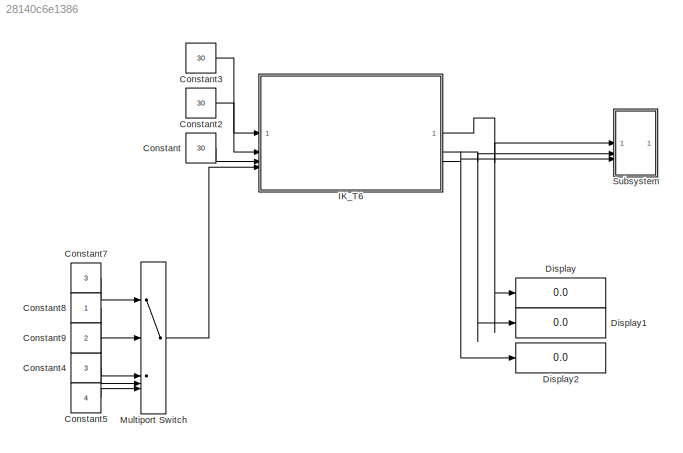
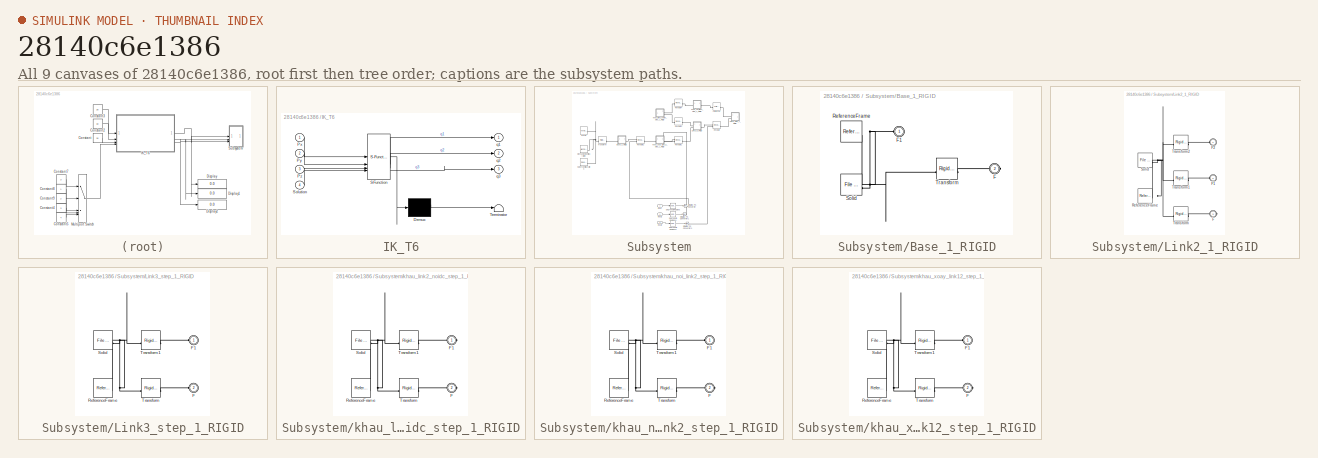
[diagram: thumbnail index - all 9 canvases of the model, root first then tree order]
MODEL slx_28140c6e1386
KIND model
CONFIG AbsTol = auto
CONFIG EnableMultiTasking = off
CONFIG FixedStep = auto
CONFIG MaxStep = auto
CONFIG MinStep = auto
CONFIG RelTol = 1e-3
CONFIG SampleTimeConstraint = Unconstrained
CONFIG SolverName = VariableStepAuto
CONFIG StartTime = 0.0
CONFIG StopTime = 10.0
WORKSPACE source: external: MATLAB File  (data not in archive)
BLOCK [Constant] Constant
  Value = 30
BLOCK [Constant] Constant2
  Value = 30
BLOCK [Constant] Constant3
  Value = 30
BLOCK [Constant] Constant4
  Value = 3
BLOCK [Constant] Constant5
  Value = 4
BLOCK [Constant] Constant7
  Value = 3
BLOCK [Constant] Constant8
BLOCK [Constant] Constant9
  Value = 2
BLOCK [Display] Display
  Decimation = 1
BLOCK [Display] Display1
  Decimation = 1
BLOCK [Display] Display2
  Decimation = 1
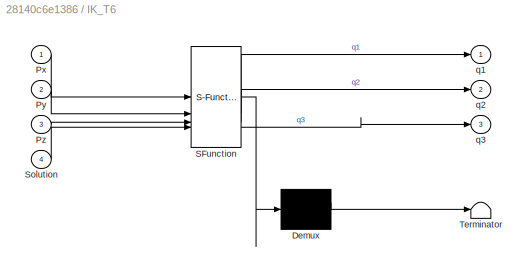
BLOCK [SubSystem] IK_T6
  ErrorFcn = Stateflow.Translate.translate
  LibrarySourceBlock = simulink/User-Defined\nFunctions/MATLAB Function
  PermitHierarchicalResolution = ExplicitOnly
  SFBlockType = MATLAB Function
  TreatAsAtomicUnit = on
BLOCK [Demux] IK_T6/ Demux 
  Outputs = 1
BLOCK [S-Function] IK_T6/ SFunction 
  EnableBusSupport = on
  FunctionName = sf_sfun
  PortCounts = [4 4]
  SFcnIsStateOwnerBlock = off
  SFunctionDeploymentMode = off
  Tag = Stateflow S-Function 3
BLOCK [Terminator] IK_T6/ Terminator 
BLOCK [Inport] IK_T6/Px
BLOCK [Inport] IK_T6/Py
  Port = 2
BLOCK [Inport] IK_T6/Pz
  Port = 3
BLOCK [Inport] IK_T6/Solution
  Port = 4
BLOCK [Outport] IK_T6/q1
BLOCK [Outport] IK_T6/q2
  Port = 2
BLOCK [Outport] IK_T6/q3
  Port = 3
BLOCK [MultiPortSwitch] Multiport Switch
  InputSameDT = off
  Inputs = 4
  SaturateOnIntegerOverflow = off
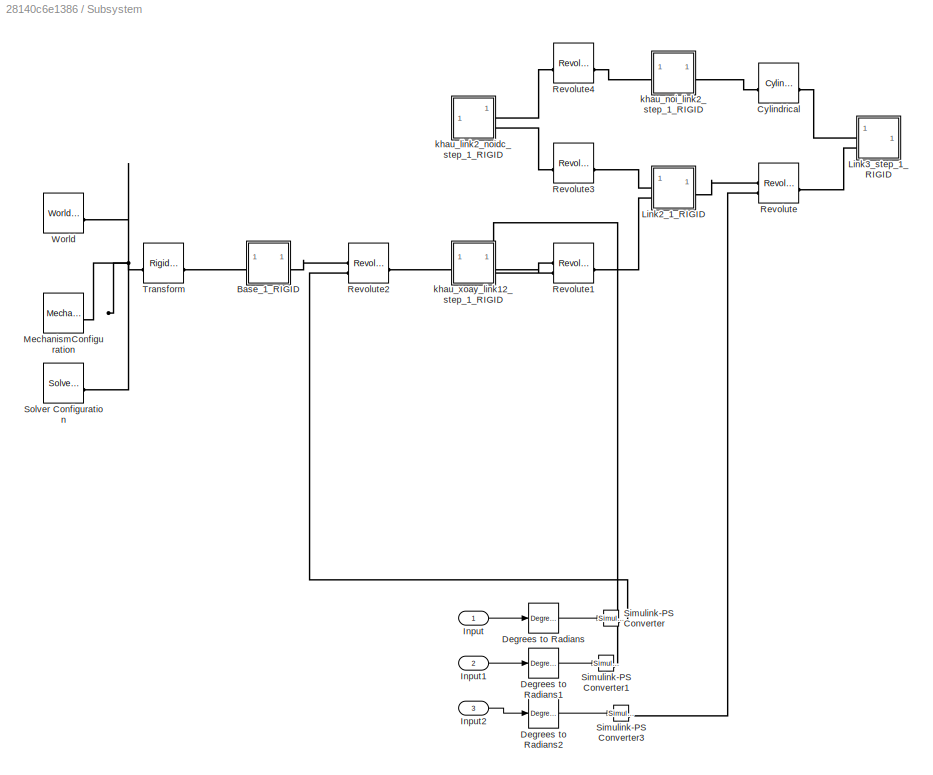
BLOCK [SubSystem] Subsystem
BLOCK [SubSystem] Subsystem/Base_1_RIGID
BLOCK [PMIOPort] Subsystem/Base_1_RIGID/F
  Port = 2
  Side = Right
BLOCK [PMIOPort] Subsystem/Base_1_RIGID/F1
  Side = Left
BLOCK [Reference] Subsystem/Base_1_RIGID/ReferenceFrame  REF=sm_lib/Frames and
Transforms/Reference
Frame
  SourceBlock = sm_lib/Frames and\nTransforms/Reference\nFrame
  SourceType = Reference\nFrame
BLOCK [Reference] Subsystem/Base_1_RIGID/Solid  REF=sm_lib/Body Elements/File Solid
  SourceBlock = sm_lib/Body Elements/File Solid
  SourceType = File Solid
BLOCK [Reference] Subsystem/Base_1_RIGID/Transform  REF=sm_lib/Frames and
Transforms/Rigid
Transform
  SourceBlock = sm_lib/Frames and\nTransforms/Rigid\nTransform
  SourceType = Rigid\nTransform
BLOCK [Reference] Subsystem/Cylindrical  REF=sm_lib/Joints/Cylindrical
Joint
  SourceBlock = sm_lib/Joints/Cylindrical\nJoint
  SourceType = Cylindrical\nJoint
BLOCK [Reference] Subsystem/Degrees to Radians  REF=simulink_extras/Transformations/Degrees to
Radians
  SourceBlock = simulink_extras/Transformations/Degrees to\nRadians
  SourceType = DegreesToRadians
BLOCK [Reference] Subsystem/Degrees to Radians1  REF=simulink_extras/Transformations/Degrees to
Radians
  SourceBlock = simulink_extras/Transformations/Degrees to\nRadians
  SourceType = DegreesToRadians
BLOCK [Reference] Subsystem/Degrees to Radians2  REF=simulink_extras/Transformations/Degrees to
Radians
  SourceBlock = simulink_extras/Transformations/Degrees to\nRadians
  SourceType = DegreesToRadians
BLOCK [Inport] Subsystem/Input
BLOCK [Inport] Subsystem/Input1
  Port = 2
BLOCK [Inport] Subsystem/Input2
  Port = 3
BLOCK [SubSystem] Subsystem/Link2_1_RIGID
BLOCK [PMIOPort] Subsystem/Link2_1_RIGID/F
  Port = 3
  Side = Right
BLOCK [PMIOPort] Subsystem/Link2_1_RIGID/F1
  Port = 2
  Side = Left
BLOCK [PMIOPort] Subsystem/Link2_1_RIGID/F2
  Side = Left
BLOCK [Reference] Subsystem/Link2_1_RIGID/ReferenceFrame  REF=sm_lib/Frames and
Transforms/Reference
Frame
  SourceBlock = sm_lib/Frames and\nTransforms/Reference\nFrame
  SourceType = Reference\nFrame
BLOCK [Reference] Subsystem/Link2_1_RIGID/Solid  REF=sm_lib/Body Elements/File Solid
  SourceBlock = sm_lib/Body Elements/File Solid
  SourceType = File Solid
BLOCK [Reference] Subsystem/Link2_1_RIGID/Transform  REF=sm_lib/Frames and
Transforms/Rigid
Transform
  SourceBlock = sm_lib/Frames and\nTransforms/Rigid\nTransform
  SourceType = Rigid\nTransform
BLOCK [Reference] Subsystem/Link2_1_RIGID/Transform1  REF=sm_lib/Frames and
Transforms/Rigid
Transform
  SourceBlock = sm_lib/Frames and\nTransforms/Rigid\nTransform
  SourceType = Rigid\nTransform
BLOCK [Reference] Subsystem/Link2_1_RIGID/Transform2  REF=sm_lib/Frames and
Transforms/Rigid
Transform
  SourceBlock = sm_lib/Frames and\nTransforms/Rigid\nTransform
  SourceType = Rigid\nTransform
BLOCK [SubSystem] Subsystem/Link3_step_1_RIGID
BLOCK [PMIOPort] Subsystem/Link3_step_1_RIGID/F
  Port = 2
  Side = Left
BLOCK [PMIOPort] Subsystem/Link3_step_1_RIGID/F1
  Side = Left
BLOCK [Reference] Subsystem/Link3_step_1_RIGID/ReferenceFrame  REF=sm_lib/Frames and
Transforms/Reference
Frame
  SourceBlock = sm_lib/Frames and\nTransforms/Reference\nFrame
  SourceType = Reference\nFrame
BLOCK [Reference] Subsystem/Link3_step_1_RIGID/Solid  REF=sm_lib/Body Elements/File Solid
  SourceBlock = sm_lib/Body Elements/File Solid
  SourceType = File Solid
BLOCK [Reference] Subsystem/Link3_step_1_RIGID/Transform  REF=sm_lib/Frames and
Transforms/Rigid
Transform
  SourceBlock = sm_lib/Frames and\nTransforms/Rigid\nTransform
  SourceType = Rigid\nTransform
BLOCK [Reference] Subsystem/Link3_step_1_RIGID/Transform1  REF=sm_lib/Frames and
Transforms/Rigid
Transform
  SourceBlock = sm_lib/Frames and\nTransforms/Rigid\nTransform
  SourceType = Rigid\nTransform
BLOCK [Reference] Subsystem/MechanismConfiguration  REF=sm_lib/Utilities/Mechanism
Configuration
  SourceBlock = sm_lib/Utilities/Mechanism\nConfiguration
  SourceType = Mechanism\nConfiguration
BLOCK [Reference] Subsystem/Revolute  REF=sm_lib/Joints/Revolute Joint
  SourceBlock = sm_lib/Joints/Revolute Joint
  SourceType = Revolute Joint
BLOCK [Reference] Subsystem/Revolute1  REF=sm_lib/Joints/Revolute Joint
  SourceBlock = sm_lib/Joints/Revolute Joint
  SourceType = Revolute Joint
BLOCK [Reference] Subsystem/Revolute2  REF=sm_lib/Joints/Revolute Joint
  SourceBlock = sm_lib/Joints/Revolute Joint
  SourceType = Revolute Joint
BLOCK [Reference] Subsystem/Revolute3  REF=sm_lib/Joints/Revolute Joint
  SourceBlock = sm_lib/Joints/Revolute Joint
  SourceType = Revolute Joint
BLOCK [Reference] Subsystem/Revolute4  REF=sm_lib/Joints/Revolute Joint
  SourceBlock = sm_lib/Joints/Revolute Joint
  SourceType = Revolute Joint
BLOCK [Reference] Subsystem/Simulink-PS Converter  REF=nesl_utility/Simulink-PS
Converter
  SourceBlock = nesl_utility/Simulink-PS\nConverter
  SourceType = Simulink-PS\nConverter
BLOCK [Reference] Subsystem/Simulink-PS Converter1  REF=nesl_utility/Simulink-PS
Converter
  SourceBlock = nesl_utility/Simulink-PS\nConverter
  SourceType = Simulink-PS\nConverter
BLOCK [Reference] Subsystem/Simulink-PS Converter3  REF=nesl_utility/Simulink-PS
Converter
  SourceBlock = nesl_utility/Simulink-PS\nConverter
  SourceType = Simulink-PS\nConverter
BLOCK [Reference] Subsystem/Solver Configuration  REF=nesl_utility/Solver
Configuration
  SourceBlock = nesl_utility/Solver\nConfiguration
  SourceType = Solver\nConfiguration
BLOCK [Reference] Subsystem/Transform  REF=sm_lib/Frames and
Transforms/Rigid
Transform
  SourceBlock = sm_lib/Frames and\nTransforms/Rigid\nTransform
  SourceType = Rigid\nTransform
BLOCK [Reference] Subsystem/World  REF=sm_lib/Frames and
Transforms/World Frame
  SourceBlock = sm_lib/Frames and\nTransforms/World Frame
  SourceType = World Frame
BLOCK [SubSystem] Subsystem/khau_link2_noidc_step_1_RIGID
BLOCK [PMIOPort] Subsystem/khau_link2_noidc_step_1_RIGID/F
  Port = 2
  Side = Right
BLOCK [PMIOPort] Subsystem/khau_link2_noidc_step_1_RIGID/F1
  Side = Right
BLOCK [Reference] Subsystem/khau_link2_noidc_step_1_RIGID/ReferenceFrame  REF=sm_lib/Frames and
Transforms/Reference
Frame
  SourceBlock = sm_lib/Frames and\nTransforms/Reference\nFrame
  SourceType = Reference\nFrame
BLOCK [Reference] Subsystem/khau_link2_noidc_step_1_RIGID/Solid  REF=sm_lib/Body Elements/File Solid
  SourceBlock = sm_lib/Body Elements/File Solid
  SourceType = File Solid
BLOCK [Reference] Subsystem/khau_link2_noidc_step_1_RIGID/Transform  REF=sm_lib/Frames and
Transforms/Rigid
Transform
  SourceBlock = sm_lib/Frames and\nTransforms/Rigid\nTransform
  SourceType = Rigid\nTransform
BLOCK [Reference] Subsystem/khau_link2_noidc_step_1_RIGID/Transform1  REF=sm_lib/Frames and
Transforms/Rigid
Transform
  SourceBlock = sm_lib/Frames and\nTransforms/Rigid\nTransform
  SourceType = Rigid\nTransform
BLOCK [SubSystem] Subsystem/khau_noi_link2_step_1_RIGID
BLOCK [PMIOPort] Subsystem/khau_noi_link2_step_1_RIGID/F
  Port = 2
  Side = Right
BLOCK [PMIOPort] Subsystem/khau_noi_link2_step_1_RIGID/F1
  Side = Left
BLOCK [Reference] Subsystem/khau_noi_link2_step_1_RIGID/ReferenceFrame  REF=sm_lib/Frames and
Transforms/Reference
Frame
  SourceBlock = sm_lib/Frames and\nTransforms/Reference\nFrame
  SourceType = Reference\nFrame
BLOCK [Reference] Subsystem/khau_noi_link2_step_1_RIGID/Solid  REF=sm_lib/Body Elements/File Solid
  SourceBlock = sm_lib/Body Elements/File Solid
  SourceType = File Solid
BLOCK [Reference] Subsystem/khau_noi_link2_step_1_RIGID/Transform  REF=sm_lib/Frames and
Transforms/Rigid
Transform
  SourceBlock = sm_lib/Frames and\nTransforms/Rigid\nTransform
  SourceType = Rigid\nTransform
BLOCK [Reference] Subsystem/khau_noi_link2_step_1_RIGID/Transform1  REF=sm_lib/Frames and
Transforms/Rigid
Transform
  SourceBlock = sm_lib/Frames and\nTransforms/Rigid\nTransform
  SourceType = Rigid\nTransform
BLOCK [SubSystem] Subsystem/khau_xoay_link12_step_1_RIGID
BLOCK [PMIOPort] Subsystem/khau_xoay_link12_step_1_RIGID/F
  Port = 2
  Side = Right
BLOCK [PMIOPort] Subsystem/khau_xoay_link12_step_1_RIGID/F1
  Side = Left
BLOCK [Reference] Subsystem/khau_xoay_link12_step_1_RIGID/ReferenceFrame  REF=sm_lib/Frames and
Transforms/Reference
Frame
  SourceBlock = sm_lib/Frames and\nTransforms/Reference\nFrame
  SourceType = Reference\nFrame
BLOCK [Reference] Subsystem/khau_xoay_link12_step_1_RIGID/Solid  REF=sm_lib/Body Elements/File Solid
  SourceBlock = sm_lib/Body Elements/File Solid
  SourceType = File Solid
BLOCK [Reference] Subsystem/khau_xoay_link12_step_1_RIGID/Transform  REF=sm_lib/Frames and
Transforms/Rigid
Transform
  SourceBlock = sm_lib/Frames and\nTransforms/Rigid\nTransform
  SourceType = Rigid\nTransform
BLOCK [Reference] Subsystem/khau_xoay_link12_step_1_RIGID/Transform1  REF=sm_lib/Frames and
Transforms/Rigid
Transform
  SourceBlock = sm_lib/Frames and\nTransforms/Rigid\nTransform
  SourceType = Rigid\nTransform
LINE Constant2:1 -> IK_T6:2
LINE Constant3:1 -> IK_T6:1
LINE Constant4:1 -> Multiport Switch:4
LINE Constant5:1 -> Multiport Switch:5
LINE Constant7:1 -> Multiport Switch:1
LINE Constant8:1 -> Multiport Switch:2
LINE Constant9:1 -> Multiport Switch:3
LINE Constant:1 -> IK_T6:3
NET IK_T6:1 -> Display:1, Subsystem:1
NET IK_T6:2 -> Display1:1, Subsystem:2
NET IK_T6:3 -> Display2:1, Subsystem:3
LINE Multiport Switch:1 -> IK_T6:4
LINE Subsystem/Degrees to Radians1:1 -> Subsystem/Simulink-PS Converter1:1
LINE Subsystem/Degrees to Radians2:1 -> Subsystem/Simulink-PS Converter3:1
LINE Subsystem/Degrees to Radians:1 -> Subsystem/Simulink-PS Converter:1
LINE Subsystem/Input1:1 -> Subsystem/Degrees to Radians1:1
LINE Subsystem/Input2:1 -> Subsystem/Degrees to Radians2:1
LINE Subsystem/Input:1 -> Subsystem/Degrees to Radians:1
PNET net1: Subsystem/Base_1_RIGID/F1:RConn1 -- Subsystem/Base_1_RIGID/ReferenceFrame:RConn1 -- Subsystem/Base_1_RIGID/Solid:RConn1 -- Subsystem/Base_1_RIGID/Transform:LConn1
PLINE Subsystem/Base_1_RIGID/F:RConn1 -- Subsystem/Base_1_RIGID/Transform:RConn1
PLINE Subsystem/Base_1_RIGID:LConn1 -- Subsystem/Transform:RConn1
PLINE Subsystem/Base_1_RIGID:RConn1 -- Subsystem/Revolute2:LConn1
PLINE Subsystem/Cylindrical:LConn1 -- Subsystem/khau_noi_link2_step_1_RIGID:RConn1
PLINE Subsystem/Cylindrical:RConn1 -- Subsystem/Link3_step_1_RIGID:LConn1
PLINE Subsystem/Link2_1_RIGID/F1:RConn1 -- Subsystem/Link2_1_RIGID/Transform1:RConn1
PLINE Subsystem/Link2_1_RIGID/F2:RConn1 -- Subsystem/Link2_1_RIGID/Transform2:RConn1
PLINE Subsystem/Link2_1_RIGID/F:RConn1 -- Subsystem/Link2_1_RIGID/Transform:RConn1
PNET net2: Subsystem/Link2_1_RIGID/ReferenceFrame:RConn1 -- Subsystem/Link2_1_RIGID/Solid:RConn1 -- Subsystem/Link2_1_RIGID/Transform1:LConn1 -- Subsystem/Link2_1_RIGID/Transform2:LConn1 -- Subsystem/Link2_1_RIGID/Transform:LConn1
PLINE Subsystem/Link2_1_RIGID:LConn1 -- Subsystem/Revolute3:RConn1
PLINE Subsystem/Link2_1_RIGID:LConn2 -- Subsystem/Revolute1:RConn1
PLINE Subsystem/Link2_1_RIGID:RConn1 -- Subsystem/Revolute:LConn1
PLINE Subsystem/Link3_step_1_RIGID/F1:RConn1 -- Subsystem/Link3_step_1_RIGID/Transform1:RConn1
PLINE Subsystem/Link3_step_1_RIGID/F:RConn1 -- Subsystem/Link3_step_1_RIGID/Transform:RConn1
PNET net3: Subsystem/Link3_step_1_RIGID/ReferenceFrame:RConn1 -- Subsystem/Link3_step_1_RIGID/Solid:RConn1 -- Subsystem/Link3_step_1_RIGID/Transform1:LConn1 -- Subsystem/Link3_step_1_RIGID/Transform:LConn1
PLINE Subsystem/Link3_step_1_RIGID:LConn2 -- Subsystem/Revolute:RConn1
PNET net4: Subsystem/MechanismConfiguration:RConn1 -- Subsystem/Solver Configuration:RConn1 -- Subsystem/Transform:LConn1 -- Subsystem/World:RConn1
PLINE Subsystem/Revolute1:LConn1 -- Subsystem/khau_xoay_link12_step_1_RIGID:RConn1
PLINE Subsystem/Revolute1:LConn2 -- Subsystem/Simulink-PS Converter1:RConn1
PLINE Subsystem/Revolute2:LConn2 -- Subsystem/Simulink-PS Converter:RConn1
PLINE Subsystem/Revolute2:RConn1 -- Subsystem/khau_xoay_link12_step_1_RIGID:LConn1
PLINE Subsystem/Revolute3:LConn1 -- Subsystem/khau_link2_noidc_step_1_RIGID:RConn2
PLINE Subsystem/Revolute4:LConn1 -- Subsystem/khau_link2_noidc_step_1_RIGID:RConn1
PLINE Subsystem/Revolute4:RConn1 -- Subsystem/khau_noi_link2_step_1_RIGID:LConn1
PLINE Subsystem/Revolute:LConn2 -- Subsystem/Simulink-PS Converter3:RConn1
PLINE Subsystem/khau_link2_noidc_step_1_RIGID/F1:RConn1 -- Subsystem/khau_link2_noidc_step_1_RIGID/Transform1:RConn1
PLINE Subsystem/khau_link2_noidc_step_1_RIGID/F:RConn1 -- Subsystem/khau_link2_noidc_step_1_RIGID/Transform:RConn1
PNET net5: Subsystem/khau_link2_noidc_step_1_RIGID/ReferenceFrame:RConn1 -- Subsystem/khau_link2_noidc_step_1_RIGID/Solid:RConn1 -- Subsystem/khau_link2_noidc_step_1_RIGID/Transform1:LConn1 -- Subsystem/khau_link2_noidc_step_1_RIGID/Transform:LConn1
PLINE Subsystem/khau_noi_link2_step_1_RIGID/F1:RConn1 -- Subsystem/khau_noi_link2_step_1_RIGID/Transform1:RConn1
PLINE Subsystem/khau_noi_link2_step_1_RIGID/F:RConn1 -- Subsystem/khau_noi_link2_step_1_RIGID/Transform:RConn1
PNET net6: Subsystem/khau_noi_link2_step_1_RIGID/ReferenceFrame:RConn1 -- Subsystem/khau_noi_link2_step_1_RIGID/Solid:RConn1 -- Subsystem/khau_noi_link2_step_1_RIGID/Transform1:LConn1 -- Subsystem/khau_noi_link2_step_1_RIGID/Transform:LConn1
PLINE Subsystem/khau_xoay_link12_step_1_RIGID/F1:RConn1 -- Subsystem/khau_xoay_link12_step_1_RIGID/Transform1:RConn1
PLINE Subsystem/khau_xoay_link12_step_1_RIGID/F:RConn1 -- Subsystem/khau_xoay_link12_step_1_RIGID/Transform:RConn1
PNET net7: Subsystem/khau_xoay_link12_step_1_RIGID/ReferenceFrame:RConn1 -- Subsystem/khau_xoay_link12_step_1_RIGID/Solid:RConn1 -- Subsystem/khau_xoay_link12_step_1_RIGID/Transform1:LConn1 -- Subsystem/khau_xoay_link12_step_1_RIGID/Transform:LConn1
note: NET lines group one-source signal fan-out (src -> all destinations, sorted); 1:1 wires keep LINE; PNET lines group multi-terminal physical nets as a canonical sorted terminal list (undirected conserving connections); 2-terminal nets keep the pairwise PLINE form
CHART IK_T6 states=1 transitions=1
  STATE_LABEL 'eML_blk_kernel()'
  STATE_LABEL 'SCRIPT:\nfunction [q1,q2,q3]=IK_T6(Px, Py, Pz, Solution)\n\n    %% Declare link lengths\n    l0 = 10;\n    l1 = 20;\n    l2 = 15;\n    l3 = 10;\n\n    %% Adjust Py to account for potential coordinate system convention\n    Py = -Py;\n\n    %% Calculate Theta1 (q1) - Two possible solutions for q1\n    q1   = atan2d(Py, (Px - l0));\n    q1_1 = atan2d(Py, (Px - l0)) + 180;\n\n    %% Calculate intermediate terms E an...<+2109ch>'
CHART  states=0 transitions=0
